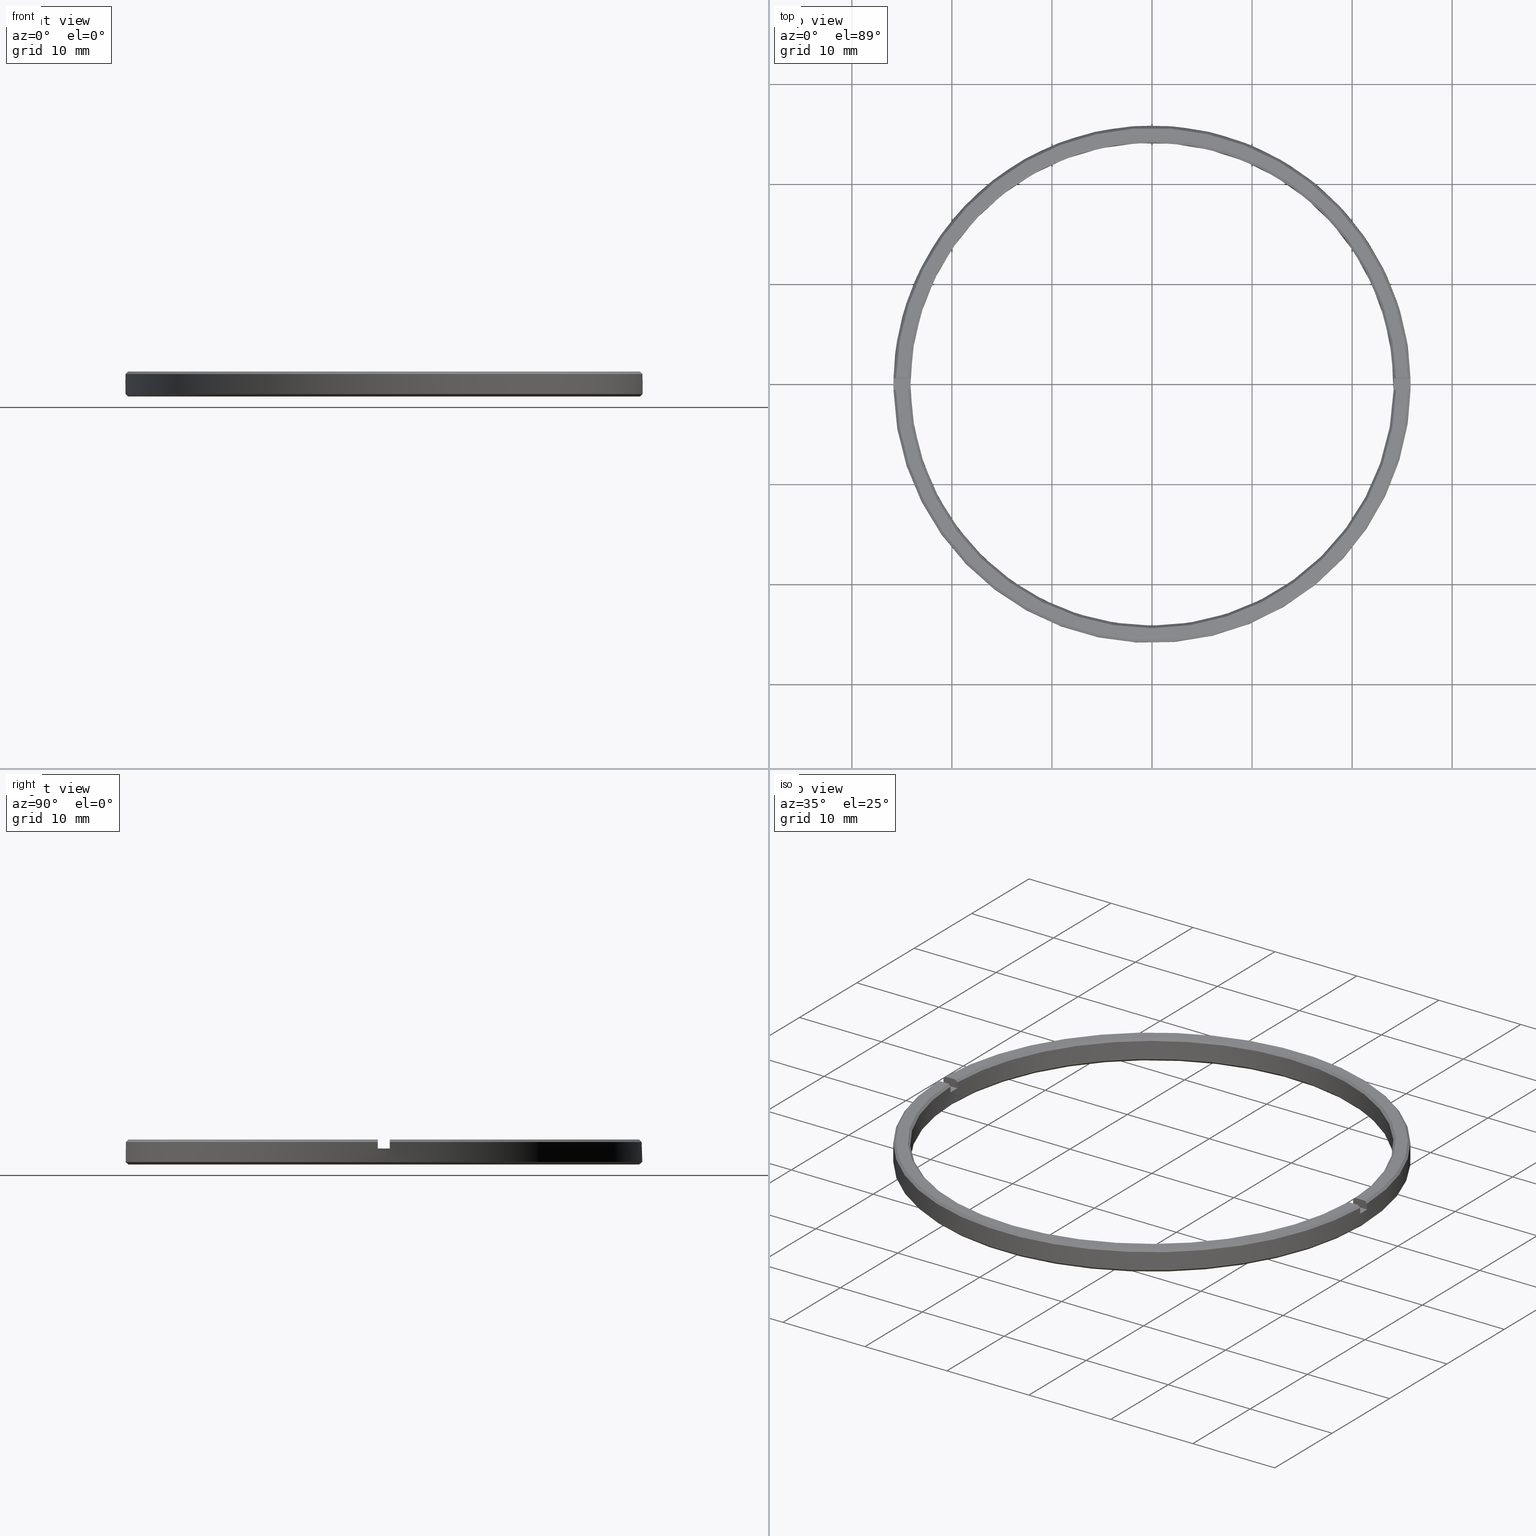
[diagram: canonical four-view strip — front | top / right | iso, engineering-drawing reading convention]
A machine part, canonical four-view strip (front | top / right | iso — engineering-drawing reading convention). The complete STEP part file that produces these views, byte-faithful:
ISO-10303-21;
HEADER;
FILE_DESCRIPTION (( 'STEP AP203' ),
    '1' );
FILE_NAME ('530083.STEP',
    '2024-05-08T01:04:20',
    ( 'Windows User' ),
    ( 'P R C' ),
    'SwSTEP 2.0',
    'SolidWorks 2020',
    '' );
FILE_SCHEMA (( 'CONFIG_CONTROL_DESIGN' ));
ENDSEC;

DATA;
#1 = ORIENTED_EDGE ( 'NONE', *, *, #526, .F. ) ;
#2 = AXIS2_PLACEMENT_3D ( 'NONE', #207, #560, #423 ) ;
#3 = EDGE_CURVE ( 'NONE', #324, #279, #374, .T. ) ;
#4 = ORIENTED_EDGE ( 'NONE', *, *, #190, .T. ) ;
#5 = FACE_BOUND ( 'NONE', #497, .T. ) ;
#6 = CIRCLE ( 'NONE', #103, 25.84450000000000003 ) ;
#7 = LINE ( 'NONE', #375, #263 ) ;
#8 = PLANE ( 'NONE',  #144 ) ;
#9 = VERTEX_POINT ( 'NONE', #59 ) ;
#10 = EDGE_CURVE ( 'NONE', #571, #54, #344, .T. ) ;
#11 = CARTESIAN_POINT ( 'NONE',  ( 0.000000000000000000, 2.775557561562891351E-14, -2.500000000000002220 ) ) ;
#12 = FACE_OUTER_BOUND ( 'NONE', #340, .T. ) ;
#13 = CARTESIAN_POINT ( 'NONE',  ( 0.000000000000000000, 7.536886096116588282E-31, -9.920449878242365571E-15 ) ) ;
#14 = DIRECTION ( 'NONE',  ( 0.000000000000000000, 0.000000000000000000, 1.000000000000000000 ) ) ;
#15 = FACE_OUTER_BOUND ( 'NONE', #464, .T. ) ;
#16 = EDGE_CURVE ( 'NONE', #384, #314, #102, .T. ) ;
#17 = AXIS2_PLACEMENT_3D ( 'NONE', #101, #469, #504 ) ;
#18 = ORIENTED_EDGE ( 'NONE', *, *, #292, .F. ) ;
#19 = CARTESIAN_POINT ( 'NONE',  ( 25.84450000000000003, 2.614882649339262468E-45, -2.250000000000002665 ) ) ;
#20 = CARTESIAN_POINT ( 'NONE',  ( -25.58746627257167106, 0.5999999999998090194, 1.503456963371626880E-13 ) ) ;
#21 = ORIENTED_EDGE ( 'NONE', *, *, #138, .F. ) ;
#22 = LINE ( 'NONE', #117, #573 ) ;
#23 = CARTESIAN_POINT ( 'NONE',  ( 24.39262183530548711, -0.6000000000000171863, 4.550754615721229933E-12 ) ) ;
#24 = ADVANCED_FACE ( 'NONE', ( #333 ), #223, .F. ) ;
#25 = CIRCLE ( 'NONE', #57, 25.59450000000001779 ) ;
#26 = CARTESIAN_POINT ( 'NONE',  ( 6.933347799793970248E-32, 2.775557561562890720E-14, -0.2500000000000279776 ) ) ;
#27 = DIRECTION ( 'NONE',  ( 3.081487911019577365E-32, -3.014754438446559643E-30, 1.000000000000000000 ) ) ;
#28 = ADVANCED_FACE ( 'NONE', ( #5, #12 ), #8, .F. ) ;
#29 = ORIENTED_EDGE ( 'NONE', *, *, #430, .T. ) ;
#30 = CIRCLE ( 'NONE', #291, 24.14999999999999858 ) ;
#31 = CARTESIAN_POINT ( 'NONE',  ( -24.14254543332106095, 0.5999999999996008526, -0.9000000000000119016 ) ) ;
#32 = FACE_OUTER_BOUND ( 'NONE', #372, .T. ) ;
#33 = CALENDAR_DATE ( 2024, 8, 5 ) ;
#34 = CARTESIAN_POINT ( 'NONE',  ( -24.30926316512925212, -0.6000000000000449418, -0.08333346386030346387 ) ) ;
#35 = DIRECTION ( 'NONE',  ( 0.000000000000000000, -1.000000000000000000, -3.030971715756955358E-30 ) ) ;
#36 = EDGE_CURVE ( 'NONE', #115, #115, #250, .T. ) ;
#37 = PRODUCT_DEFINITION_FORMATION_WITH_SPECIFIED_SOURCE ( '�κ�', '', #199, .NOT_KNOWN. ) ;
#38 = COORDINATED_UNIVERSAL_TIME_OFFSET ( 8, 0, .AHEAD. ) ;
#39 = ORIENTED_EDGE ( 'NONE', *, *, #569, .T. ) ;
#40 = DIRECTION ( 'NONE',  ( 1.857681716448781253E-61, 1.000000000000000000, 3.014754438446559643E-30 ) ) ;
#41 = LINE ( 'NONE', #528, #86 ) ;
#42 = APPROVAL_DATE_TIME ( #453, #71 ) ;
#43 = ORIENTED_EDGE ( 'NONE', *, *, #257, .F. ) ;
#44 = DIRECTION ( 'NONE',  ( -1.000000000000000000, 1.138016346203796793E-61, -3.774822690998982272E-32 ) ) ;
#45 = APPROVAL_STATUS ( 'not_yet_approved' ) ;
#46 = EDGE_LOOP ( 'NONE', ( #415 ) ) ;
#47 = AXIS2_PLACEMENT_3D ( 'NONE', #198, #330, #151 ) ;
#48 = ADVANCED_FACE ( 'NONE', ( #98, #195 ), #531, .T. ) ;
#49 = PERSON ( 'δָ��', 'δָ��', 'δָ��', ('δָ��'), ('δָ��'), ('δָ��') ) ;
#50 = ORIENTED_EDGE ( 'NONE', *, *, #209, .T. ) ;
#51 = VECTOR ( 'NONE', #79, 1000.000000000000000 ) ;
#52 = CARTESIAN_POINT ( 'NONE',  ( 24.14254543332135228, -0.6000000000000449418, -0.2500000000002927103 ) ) ;
#53 = ORIENTED_EDGE ( 'NONE', *, *, #346, .F. ) ;
#54 = VERTEX_POINT ( 'NONE', #564 ) ;
#55 = EDGE_CURVE ( 'NONE', #113, #113, #404, .T. ) ;
#56 = ORIENTED_EDGE ( 'NONE', *, *, #578, .F. ) ;
#57 = AXIS2_PLACEMENT_3D ( 'NONE', #364, #546, #137 ) ;
#58 = DIRECTION ( 'NONE',  ( 1.000000000000000000, -1.857681716448781253E-61, -5.600454199884986564E-91 ) ) ;
#59 = CARTESIAN_POINT ( 'NONE',  ( -25.58746627257294648, -0.6000000000000171863, -1.127083620833307837E-12 ) ) ;
#60 = CARTESIAN_POINT ( 'NONE',  ( -25.83753432992352828, 0.5999999999996008526, -0.2499999999997780109 ) ) ;
#61 = DIRECTION ( 'NONE',  ( -3.774822690998982272E-32, -3.014754438446559643E-30, 1.000000000000000000 ) ) ;
#62 = DIRECTION ( 'NONE',  ( 0.000000000000000000, -1.000000000000000000, 0.000000000000000000 ) ) ;
#63 = ORIENTED_EDGE ( 'NONE', *, *, #252, .F. ) ;
#64 = CARTESIAN_POINT ( 'NONE',  ( -25.83753432992374854, -0.6000000000000449418, -0.9000000000000119016 ) ) ;
#65 = APPROVAL_PERSON_ORGANIZATION ( #485, #458, #130 ) ;
#66 = ADVANCED_FACE ( 'NONE', ( #140 ), #555, .F. ) ;
#67 = DIRECTION ( 'NONE',  ( 0.000000000000000000, -1.000000000000000000, -3.030971715756962365E-30 ) ) ;
#68 = AXIS2_PLACEMENT_3D ( 'NONE', #429, #14, #380 ) ;
#69 = ORIENTED_EDGE ( 'NONE', *, *, #346, .T. ) ;
#70 =( LENGTH_UNIT ( ) NAMED_UNIT ( * ) SI_UNIT ( .MILLI., .METRE. ) );
#71 = APPROVAL ( #448, 'δָ��' ) ;
#72 = DIRECTION ( 'NONE',  ( 0.000000000000000000, -1.000000000000000000, 0.000000000000000000 ) ) ;
#73 = CONICAL_SURFACE ( 'NONE', #413, 24.39999999999999858, 0.7853981633974569387 ) ;
#74 = LINE ( 'NONE', #482, #51 ) ;
#75 = DIRECTION ( 'NONE',  ( 1.857681716448781253E-61, 1.000000000000000000, 3.014754438446559643E-30 ) ) ;
#76 = CARTESIAN_POINT ( 'NONE',  ( 0.000000000000000000, 2.775557561562891351E-14, -2.500000000000002220 ) ) ;
#77 = ORIENTED_EDGE ( 'NONE', *, *, #55, .F. ) ;
#78 = AXIS2_PLACEMENT_3D ( 'NONE', #408, #588, #577 ) ;
#79 = DIRECTION ( 'NONE',  ( -1.000000000000000000, 1.857681716448781253E-61, 5.600454199884986564E-91 ) ) ;
#80 = FACE_OUTER_BOUND ( 'NONE', #362, .T. ) ;
#81 = PERSON_AND_ORGANIZATION ( #49, #495 ) ;
#82 = EDGE_LOOP ( 'NONE', ( #77 ) ) ;
#83 = FACE_OUTER_BOUND ( 'NONE', #139, .T. ) ;
#84 = CARTESIAN_POINT ( 'NONE',  ( 0.000000000000000000, -0.5999999999999894307, -1.808852663067903976E-30 ) ) ;
#85 = CC_DESIGN_PERSON_AND_ORGANIZATION_ASSIGNMENT ( #586, #410, ( #449 ) ) ;
#86 = VECTOR ( 'NONE', #412, 1000.000000000000000 ) ;
#87 = COORDINATED_UNIVERSAL_TIME_OFFSET ( 8, 0, .AHEAD. ) ;
#88 = ORIENTED_EDGE ( 'NONE', *, *, #397, .F. ) ;
#89 = DIRECTION ( 'NONE',  ( -1.000000000000000000, 0.000000000000000000, 0.000000000000000000 ) ) ;
#90 = PERSON_AND_ORGANIZATION_ROLE ( 'design_owner' ) ;
#91 = ORIENTED_EDGE ( 'NONE', *, *, #487, .F. ) ;
#92 = ADVANCED_FACE ( 'NONE', ( #335, #551 ), #243, .F. ) ;
#93 = ORIENTED_EDGE ( 'NONE', *, *, #252, .T. ) ;
#94 = AXIS2_PLACEMENT_3D ( 'NONE', #149, #509, #95 ) ;
#95 = DIRECTION ( 'NONE',  ( 1.000000000000000000, 1.011775290425143626E-46, -3.356078616295163691E-17 ) ) ;
#96 = ORIENTED_EDGE ( 'NONE', *, *, #36, .T. ) ;
#97 = EDGE_CURVE ( 'NONE', #552, #454, #100, .T. ) ;
#98 = FACE_BOUND ( 'NONE', #587, .T. ) ;
#99 = ORIENTED_EDGE ( 'NONE', *, *, #470, .T. ) ;
#100 = LINE ( 'NONE', #104, #554 ) ;
#101 = CARTESIAN_POINT ( 'NONE',  ( -50000.00000000002183, -0.6000000000000449418, -0.9000000000000396572 ) ) ;
#102 = B_SPLINE_CURVE_WITH_KNOTS ( 'NONE', 3,
 ( #192, #561, #424, #418 ),
 .UNSPECIFIED., .F., .F.,
 ( 4, 4 ),
 ( 3.913748340808804514E-17, 0.0003536015176836902318 ),
 .UNSPECIFIED. ) ;
#103 = AXIS2_PLACEMENT_3D ( 'NONE', #222, #533, #498 ) ;
#104 = CARTESIAN_POINT ( 'NONE',  ( 24.14254543332106095, 0.5999999999996008526, -0.9000000000000119016 ) ) ;
#105 = DIRECTION ( 'NONE',  ( 3.157262203913503193E-32, -2.999399093717827902E-30, 1.000000000000000000 ) ) ;
#106 = VECTOR ( 'NONE', #395, 1000.000000000000000 ) ;
#107 = CARTESIAN_POINT ( 'NONE',  ( 24.14254543332135228, -0.6000000000000449418, -0.9000000000000119016 ) ) ;
#108 = VERTEX_POINT ( 'NONE', #251 ) ;
#109 = DIRECTION ( 'NONE',  ( -3.774822690998982272E-32, -3.014754438446559643E-30, 1.000000000000000000 ) ) ;
#110 = ADVANCED_FACE ( 'NONE', ( #471 ), #510, .T. ) ;
#111 = CARTESIAN_POINT ( 'NONE',  ( 24.30926316512926988, 0.5999999999996008526, -0.08333346386029805153 ) ) ;
#112 = EDGE_LOOP ( 'NONE', ( #18, #63, #236, #281, #208, #1 ) ) ;
#113 = VERTEX_POINT ( 'NONE', #19 ) ;
#114 = CC_DESIGN_APPROVAL ( #458, ( #37 ) ) ;
#115 = VERTEX_POINT ( 'NONE', #481 ) ;
#116 = EDGE_CURVE ( 'NONE', #253, #196, #174, .T. ) ;
#117 = CARTESIAN_POINT ( 'NONE',  ( -25.83753432992352828, 0.5999999999996008526, -0.9000000000000119016 ) ) ;
#118 = CARTESIAN_POINT ( 'NONE',  ( 4.930380657631294225E-32, 2.775557561562890720E-14, -0.9000000000000119016 ) ) ;
#119 = DIRECTION ( 'NONE',  ( -3.081487911019577365E-32, 3.014754438446559643E-30, -1.000000000000000000 ) ) ;
#120 = CARTESIAN_POINT ( 'NONE',  ( -50000.00000000002910, 0.5999999999996008526, -0.9000000000000119016 ) ) ;
#121 = AXIS2_PLACEMENT_3D ( 'NONE', #558, #105, #282 ) ;
#122 = EDGE_CURVE ( 'NONE', #321, #108, #522, .T. ) ;
#123 = PERSON_AND_ORGANIZATION ( #49, #495 ) ;
#124 = APPLICATION_CONTEXT ( 'configuration controlled 3d designs of mechanical parts and assemblies' ) ;
#125 = DIRECTION ( 'NONE',  ( 0.000000000000000000, -1.000000000000000000, 0.000000000000000000 ) ) ;
#126 = CARTESIAN_POINT ( 'NONE',  ( 24.14254543332124214, 0.5999999999996008526, -0.2500000000001449396 ) ) ;
#127 = AXIS2_PLACEMENT_3D ( 'NONE', #441, #27, #575 ) ;
#128 = DIRECTION ( 'NONE',  ( 0.000000000000000000, -1.000000000000000000, 0.000000000000000000 ) ) ;
#129 = DIRECTION ( 'NONE',  ( -1.000000000000000000, 1.138016346203796793E-61, -3.774822690998982272E-32 ) ) ;
#130 = APPROVAL_ROLE ( '' ) ;
#131 = ORIENTED_EDGE ( 'NONE', *, *, #501, .T. ) ;
#132 = ORIENTED_EDGE ( 'NONE', *, *, #3, .F. ) ;
#133 = FACE_OUTER_BOUND ( 'NONE', #370, .T. ) ;
#134 = AXIS2_PLACEMENT_3D ( 'NONE', #523, #520, #476 ) ;
#135 = CALENDAR_DATE ( 2024, 8, 5 ) ;
#136 = ORIENTED_EDGE ( 'NONE', *, *, #366, .F. ) ;
#137 = DIRECTION ( 'NONE',  ( -1.000000000000000000, 0.000000000000000000, 0.000000000000000000 ) ) ;
#138 = EDGE_CURVE ( 'NONE', #237, #321, #247, .T. ) ;
#139 = EDGE_LOOP ( 'NONE', ( #240, #529, #231, #248 ) ) ;
#140 = FACE_OUTER_BOUND ( 'NONE', #420, .T. ) ;
#141 = CC_DESIGN_APPROVAL ( #235, ( #449 ) ) ;
#142 = EDGE_CURVE ( 'NONE', #196, #321, #562, .T. ) ;
#143 = ORIENTED_EDGE ( 'NONE', *, *, #354, .T. ) ;
#144 = AXIS2_PLACEMENT_3D ( 'NONE', #472, #61, #369 ) ;
#145 = DESIGN_CONTEXT ( 'detailed design', #176, 'design' ) ;
#146 = ORIENTED_EDGE ( 'NONE', *, *, #514, .T. ) ;
#147 = EDGE_LOOP ( 'NONE', ( #325, #21, #368, #425, #407, #376 ) ) ;
#148 = DIRECTION ( 'NONE',  ( -1.000000000000000000, 0.000000000000000000, 0.000000000000000000 ) ) ;
#149 = CARTESIAN_POINT ( 'NONE',  ( 0.000000000000000000, 0.000000000000000000, -2.250000000000001776 ) ) ;
#150 = DIRECTION ( 'NONE',  ( 1.000000000000000000, -1.138016346203796793E-61, 3.774822690998982272E-32 ) ) ;
#151 = DIRECTION ( 'NONE',  ( 0.000000000000000000, -1.000000000000000000, 0.000000000000000000 ) ) ;
#152 = ADVANCED_FACE ( 'NONE', ( #15, #245 ), #73, .F. ) ;
#153 = CIRCLE ( 'NONE', #232, 25.84450000000000003 ) ;
#154 = CARTESIAN_POINT ( 'NONE',  ( 4.930380657631294225E-32, 2.775557561562890720E-14, -0.9000000000000119016 ) ) ;
#155 = DIRECTION ( 'NONE',  ( 0.000000000000000000, 0.000000000000000000, 1.000000000000000000 ) ) ;
#156 = ORIENTED_EDGE ( 'NONE', *, *, #157, .T. ) ;
#157 = EDGE_CURVE ( 'NONE', #205, #417, #435, .T. ) ;
#158 = DIRECTION ( 'NONE',  ( -3.081487911019577365E-32, 3.014754438446559643E-30, -1.000000000000000000 ) ) ;
#159 = B_SPLINE_CURVE_WITH_KNOTS ( 'NONE', 3,
 ( #409, #452, #589, #230 ),
 .UNSPECIFIED., .F., .F.,
 ( 4, 4 ),
 ( 5.603463398937076117E-15, 0.0003536074190670393481 ),
 .UNSPECIFIED. ) ;
#160 = VECTOR ( 'NONE', #213, 1000.000000000000000 ) ;
#161 = CARTESIAN_POINT ( 'NONE',  ( 25.67082240249838776, 0.5999999999996008526, -0.08333322249342473009 ) ) ;
#162 = ORIENTED_EDGE ( 'NONE', *, *, #164, .F. ) ;
#163 = FACE_OUTER_BOUND ( 'NONE', #450, .T. ) ;
#164 = EDGE_CURVE ( 'NONE', #417, #463, #153, .T. ) ;
#165 = LOCAL_TIME ( 9, 4, 20.00000000000000000, #544 ) ;
#166 = FACE_OUTER_BOUND ( 'NONE', #112, .T. ) ;
#167 = VERTEX_POINT ( 'NONE', #256 ) ;
#168 = CARTESIAN_POINT ( 'NONE',  ( -25.83753432992352828, -0.6000000000000449418, -0.9000000000000396572 ) ) ;
#169 = COORDINATED_UNIVERSAL_TIME_OFFSET ( 8, 0, .AHEAD. ) ;
#170 = PLANE ( 'NONE',  #549 ) ;
#171 = CARTESIAN_POINT ( 'NONE',  ( 0.000000000000000000, 0.000000000000000000, -0.9000000000000119016 ) ) ;
#172 = CALENDAR_DATE ( 2024, 8, 5 ) ;
#173 = CARTESIAN_POINT ( 'NONE',  ( -50000.00000000002910, 0.5999999999996008526, -0.9000000000000119016 ) ) ;
#174 = B_SPLINE_CURVE_WITH_KNOTS ( 'NONE', 3,
 ( #60, #426, #194, #20 ),
 .UNSPECIFIED., .F., .F.,
 ( 4, 4 ),
 ( 3.145556022154527739E-16, 0.0003536015176832808370 ),
 .UNSPECIFIED. ) ;
#175 = PLANE ( 'NONE',  #416 ) ;
#176 = APPLICATION_CONTEXT ( 'configuration controlled 3d designs of mechanical parts and assemblies' ) ;
#177 = CALENDAR_DATE ( 2024, 8, 5 ) ;
#178 = ORIENTED_EDGE ( 'NONE', *, *, #142, .F. ) ;
#179 = PLANE ( 'NONE',  #387 ) ;
#180 = LINE ( 'NONE', #120, #212 ) ;
#181 = CALENDAR_DATE ( 2024, 8, 5 ) ;
#182 = ORIENTED_EDGE ( 'NONE', *, *, #227, .T. ) ;
#183 = CARTESIAN_POINT ( 'NONE',  ( -24.39262183530128070, -0.6000000000000171863, 3.440289484623940248E-13 ) ) ;
#184 = VECTOR ( 'NONE', #129, 1000.000000000000000 ) ;
#185 = ORIENTED_EDGE ( 'NONE', *, *, #578, .T. ) ;
#186 = ADVANCED_FACE ( 'NONE', ( #204 ), #488, .T. ) ;
#187 = B_SPLINE_CURVE_WITH_KNOTS ( 'NONE', 3,
 ( #572, #390, #386, #210 ),
 .UNSPECIFIED., .F., .F.,
 ( 4, 4 ),
 ( 1.579884756420022282E-15, 0.0003536015176797295870 ),
 .UNSPECIFIED. ) ;
#188 = CIRCLE ( 'NONE', #308, 24.14999999999999503 ) ;
#189 = ORIENTED_EDGE ( 'NONE', *, *, #16, .F. ) ;
#190 = EDGE_CURVE ( 'NONE', #454, #237, #432, .T. ) ;
#191 = ORIENTED_EDGE ( 'NONE', *, *, #257, .T. ) ;
#192 = CARTESIAN_POINT ( 'NONE',  ( 25.83753432992367394, -0.6000000000000449418, -0.2499999999999130418 ) ) ;
#193 = LOCAL_TIME ( 9, 4, 20.00000000000000000, #169 ) ;
#194 = CARTESIAN_POINT ( 'NONE',  ( -25.67082240249835223, 0.5999999999996008526, -0.08333322249338864784 ) ) ;
#195 = FACE_OUTER_BOUND ( 'NONE', #313, .T. ) ;
#196 = VERTEX_POINT ( 'NONE', #297 ) ;
#197 = CARTESIAN_POINT ( 'NONE',  ( 24.22590436582019890, 0.5999999999996008526, -0.1666667985457844503 ) ) ;
#198 = CARTESIAN_POINT ( 'NONE',  ( 4.930380657631294225E-32, 2.775557561562890720E-14, -0.9000000000000119016 ) ) ;
#199 = PRODUCT ( '530083', '530083', '', ( #299 ) ) ;
#200 = CC_DESIGN_PERSON_AND_ORGANIZATION_ASSIGNMENT ( #317, #90, ( #199 ) ) ;
#201 = DIRECTION ( 'NONE',  ( -1.000000000000000000, 0.000000000000000000, 0.000000000000000000 ) ) ;
#202 = CARTESIAN_POINT ( 'NONE',  ( 24.22590436582300200, -0.6000000000000449418, -0.1666667985429750309 ) ) ;
#203 = CARTESIAN_POINT ( 'NONE',  ( 24.14254543332135938, 0.5999999999996008526, -0.9000000000000119016 ) ) ;
#204 = FACE_OUTER_BOUND ( 'NONE', #460, .T. ) ;
#205 = VERTEX_POINT ( 'NONE', #107 ) ;
#206 = AXIS2_PLACEMENT_3D ( 'NONE', #118, #525, #128 ) ;
#207 = CARTESIAN_POINT ( 'NONE',  ( 0.000000000000000000, -7.536886096115486511E-31, -3.512815038852896158E-14 ) ) ;
#208 = ORIENTED_EDGE ( 'NONE', *, *, #116, .F. ) ;
#209 = EDGE_CURVE ( 'NONE', #571, #513, #517, .T. ) ;
#210 = CARTESIAN_POINT ( 'NONE',  ( -25.83753432992374854, -0.6000000000000449418, -0.2499999999997694067 ) ) ;
#211 =( NAMED_UNIT ( * ) PLANE_ANGLE_UNIT ( ) SI_UNIT ( $, .RADIAN. ) );
#212 = VECTOR ( 'NONE', #218, 1000.000000000000000 ) ;
#213 = DIRECTION ( 'NONE',  ( -0.000000000000000000, 3.014754438446559643E-30, -1.000000000000000000 ) ) ;
#214 = CARTESIAN_POINT ( 'NONE',  ( -24.14254543332135228, -0.6000000000000449418, -0.9000000000000119016 ) ) ;
#215 = EDGE_CURVE ( 'NONE', #264, #237, #216, .T. ) ;
#216 = CIRCLE ( 'NONE', #2, 24.39999999999996660 ) ;
#217 = DIRECTION ( 'NONE',  ( -1.000000000000000000, 0.000000000000000000, 3.591559991670408781E-17 ) ) ;
#218 = DIRECTION ( 'NONE',  ( -1.000000000000000000, 1.857681716448781253E-61, 5.600454199884986564E-91 ) ) ;
#219 = DATE_AND_TIME ( #33, #221 ) ;
#220 = CARTESIAN_POINT ( 'NONE',  ( -24.39262183530128070, -0.6000000000000171863, 3.440289484623940248E-13 ) ) ;
#221 = LOCAL_TIME ( 9, 4, 20.00000000000000000, #87 ) ;
#222 = CARTESIAN_POINT ( 'NONE',  ( 6.933347799794055640E-32, 2.775557561562890720E-14, -0.2500000000000002220 ) ) ;
#223 = CONICAL_SURFACE ( 'NONE', #121, 24.39999999999999147, 0.7853981633974526089 ) ;
#224 = ORIENTED_EDGE ( 'NONE', *, *, #541, .T. ) ;
#225 = PLANE ( 'NONE',  #78 ) ;
#226 = LINE ( 'NONE', #584, #184 ) ;
#227 = EDGE_CURVE ( 'NONE', #196, #264, #7, .T. ) ;
#228 = COORDINATED_UNIVERSAL_TIME_OFFSET ( 8, 0, .AHEAD. ) ;
#229 = ORIENTED_EDGE ( 'NONE', *, *, #164, .T. ) ;
#230 = CARTESIAN_POINT ( 'NONE',  ( -24.14254543332135938, 0.5999999999996008526, -0.2500000000003254064 ) ) ;
#231 = ORIENTED_EDGE ( 'NONE', *, *, #400, .T. ) ;
#232 = AXIS2_PLACEMENT_3D ( 'NONE', #154, #379, #557 ) ;
#233 = CIRCLE ( 'NONE', #258, 24.14999999999999858 ) ;
#234 = EDGE_LOOP ( 'NONE', ( #336, #540, #260, #565 ) ) ;
#235 = APPROVAL ( #277, 'δָ��' ) ;
#236 = ORIENTED_EDGE ( 'NONE', *, *, #480, .F. ) ;
#237 = VERTEX_POINT ( 'NONE', #332 ) ;
#238 = EDGE_LOOP ( 'NONE', ( #389, #274, #185, #466 ) ) ;
#239 = CIRCLE ( 'NONE', #341, 24.39999999999999858 ) ;
#240 = ORIENTED_EDGE ( 'NONE', *, *, #292, .T. ) ;
#241 =( GEOMETRIC_REPRESENTATION_CONTEXT ( 3 ) GLOBAL_UNCERTAINTY_ASSIGNED_CONTEXT ( ( #322 ) ) GLOBAL_UNIT_ASSIGNED_CONTEXT ( ( #70, #211, #392 ) ) REPRESENTATION_CONTEXT ( 'NONE', 'WORKASPACE' ) );
#242 = DIRECTION ( 'NONE',  ( 0.000000000000000000, 0.000000000000000000, -1.000000000000000000 ) ) ;
#243 = CYLINDRICAL_SURFACE ( 'NONE', #352, 24.14999999999999858 ) ;
#244 = EDGE_CURVE ( 'NONE', #556, #591, #486, .T. ) ;
#245 = FACE_BOUND ( 'NONE', #46, .T. ) ;
#246 = CARTESIAN_POINT ( 'NONE',  ( 0.000000000000000000, 1.023290938330524582E-44, -2.500000000000002220 ) ) ;
#247 = LINE ( 'NONE', #431, #302 ) ;
#248 = ORIENTED_EDGE ( 'NONE', *, *, #3, .T. ) ;
#249 = VERTEX_POINT ( 'NONE', #300 ) ;
#250 = CIRCLE ( 'NONE', #459, 25.59450000000000003 ) ;
#251 = CARTESIAN_POINT ( 'NONE',  ( 25.83753432992370591, 0.5999999999996008526, -0.2499999999997050970 ) ) ;
#252 = EDGE_CURVE ( 'NONE', #298, #279, #301, .T. ) ;
#253 = VERTEX_POINT ( 'NONE', #269 ) ;
#254 = DIRECTION ( 'NONE',  ( -3.081487911019577365E-32, 3.014754438446559643E-30, -1.000000000000000000 ) ) ;
#255 = AXIS2_PLACEMENT_3D ( 'NONE', #13, #338, #287 ) ;
#256 = CARTESIAN_POINT ( 'NONE',  ( -24.39999999999999858, 2.775557561562891351E-14, -2.500000000000002220 ) ) ;
#257 = EDGE_CURVE ( 'NONE', #417, #384, #393, .T. ) ;
#258 = AXIS2_PLACEMENT_3D ( 'NONE', #447, #312, #455 ) ;
#259 = FACE_OUTER_BOUND ( 'NONE', #82, .T. ) ;
#260 = ORIENTED_EDGE ( 'NONE', *, *, #122, .T. ) ;
#261 = FACE_OUTER_BOUND ( 'NONE', #505, .T. ) ;
#262 = CARTESIAN_POINT ( 'NONE',  ( -50000.00000000002183, -0.6000000000000449418, -0.9000000000000396572 ) ) ;
#263 = VECTOR ( 'NONE', #150, 1000.000000000000000 ) ;
#264 = VERTEX_POINT ( 'NONE', #583 ) ;
#265 = DATE_TIME_ROLE ( 'creation_date' ) ;
#266 = CARTESIAN_POINT ( 'NONE',  ( -24.14254543332135938, 0.5999999999996008526, -0.2500000000003254064 ) ) ;
#267 = DIRECTION ( 'NONE',  ( 0.000000000000000000, -2.904681227600415756E-30, 1.000000000000000000 ) ) ;
#268 = ORIENTED_EDGE ( 'NONE', *, *, #328, .F. ) ;
#269 = CARTESIAN_POINT ( 'NONE',  ( -25.83753432992352828, 0.5999999999996008526, -0.2499999999997780109 ) ) ;
#270 = VECTOR ( 'NONE', #537, 1000.000000000000000 ) ;
#271 = APPROVAL_PERSON_ORGANIZATION ( #445, #235, #456 ) ;
#272 = DIRECTION ( 'NONE',  ( 0.000000000000000000, -1.000000000000000000, -3.014754438446559643E-30 ) ) ;
#273 = DATE_AND_TIME ( #172, #371 ) ;
#274 = ORIENTED_EDGE ( 'NONE', *, *, #10, .T. ) ;
#275 = LINE ( 'NONE', #542, #270 ) ;
#276 = PRODUCT_RELATED_PRODUCT_CATEGORY ( 'detail', '', ( #199 ) ) ;
#277 = APPROVAL_STATUS ( 'not_yet_approved' ) ;
#278 = CC_DESIGN_DATE_AND_TIME_ASSIGNMENT ( #350, #361, ( #449 ) ) ;
#279 = VERTEX_POINT ( 'NONE', #310 ) ;
#280 = MANIFOLD_SOLID_BREP ( '�г�-����1', #582 ) ;
#281 = ORIENTED_EDGE ( 'NONE', *, *, #227, .F. ) ;
#282 = DIRECTION ( 'NONE',  ( 0.000000000000000000, -1.000000000000000000, -3.030971715756962365E-30 ) ) ;
#283 = ORIENTED_EDGE ( 'NONE', *, *, #480, .T. ) ;
#284 = CARTESIAN_POINT ( 'NONE',  ( 24.30926316513486540, -0.6000000000000449418, -0.08333346385469361794 ) ) ;
#285 = EDGE_CURVE ( 'NONE', #548, #591, #337, .T. ) ;
#286 = ORIENTED_EDGE ( 'NONE', *, *, #461, .F. ) ;
#287 = DIRECTION ( 'NONE',  ( -1.000000000000000000, 0.000000000000000000, 0.000000000000000000 ) ) ;
#288 = ORIENTED_EDGE ( 'NONE', *, *, #470, .F. ) ;
#289 = DIRECTION ( 'NONE',  ( -1.000000000000000000, 0.000000000000000000, 0.000000000000000000 ) ) ;
#290 = CARTESIAN_POINT ( 'NONE',  ( 25.83753432992367394, -0.6000000000000449418, -0.2499999999999130418 ) ) ;
#291 = AXIS2_PLACEMENT_3D ( 'NONE', #306, #351, #125 ) ;
#292 = EDGE_CURVE ( 'NONE', #279, #548, #74, .T. ) ;
#293 = ADVANCED_BREP_SHAPE_REPRESENTATION ( '530083', ( #280, #323 ), #241 ) ;
#294 = DIRECTION ( 'NONE',  ( 3.081487911019577365E-32, -3.014754438446559643E-30, 1.000000000000000000 ) ) ;
#295 = ORIENTED_EDGE ( 'NONE', *, *, #215, .F. ) ;
#296 = ADVANCED_FACE ( 'NONE', ( #259, #261 ), #442, .T. ) ;
#297 = CARTESIAN_POINT ( 'NONE',  ( -25.58746627257167106, 0.5999999999998090194, 1.503456963371626880E-13 ) ) ;
#298 = VERTEX_POINT ( 'NONE', #266 ) ;
#299 = MECHANICAL_CONTEXT ( 'NONE', #124, 'mechanical' ) ;
#300 = CARTESIAN_POINT ( 'NONE',  ( -24.14999999999999503, 2.775557561562891351E-14, -2.250000000000004441 ) ) ;
#301 = LINE ( 'NONE', #31, #160 ) ;
#302 = VECTOR ( 'NONE', #508, 1000.000000000000000 ) ;
#303 = CARTESIAN_POINT ( 'NONE',  ( -24.14254543332124214, -0.6000000000000449418, -0.2500000000001097455 ) ) ;
#304 = DIRECTION ( 'NONE',  ( 0.000000000000000000, 3.014754438446559643E-30, -1.000000000000000000 ) ) ;
#305 = CC_DESIGN_DATE_AND_TIME_ASSIGNMENT ( #219, #265, ( #394 ) ) ;
#306 = CARTESIAN_POINT ( 'NONE',  ( 4.930380657631294225E-32, 2.775557561562890720E-14, -0.9000000000000119016 ) ) ;
#307 = CARTESIAN_POINT ( 'NONE',  ( -50000.00000000002183, -0.6000000000000449418, -0.9000000000000119016 ) ) ;
#308 = AXIS2_PLACEMENT_3D ( 'NONE', #491, #119, #217 ) ;
#309 = APPLICATION_PROTOCOL_DEFINITION ( 'international standard', 'config_control_design', 1994, #176 ) ;
#310 = CARTESIAN_POINT ( 'NONE',  ( -24.14254543332135938, 0.5999999999996008526, -0.9000000000000257794 ) ) ;
#311 = ADVANCED_FACE ( 'NONE', ( #166 ), #170, .F. ) ;
#312 = DIRECTION ( 'NONE',  ( -3.081487911019577365E-32, 3.014754438446559643E-30, -1.000000000000000000 ) ) ;
#313 = EDGE_LOOP ( 'NONE', ( #427 ) ) ;
#314 = VERTEX_POINT ( 'NONE', #451 ) ;
#315 = AXIS2_PLACEMENT_3D ( 'NONE', #26, #254, #72 ) ;
#316 = DIRECTION ( 'NONE',  ( -3.774822690998982272E-32, -3.014754438446559643E-30, 1.000000000000000000 ) ) ;
#317 = PERSON_AND_ORGANIZATION ( #49, #495 ) ;
#318 = ORIENTED_EDGE ( 'NONE', *, *, #397, .T. ) ;
#319 = CARTESIAN_POINT ( 'NONE',  ( 25.83753432992374854, -0.6000000000000449418, -0.9000000000000119016 ) ) ;
#320 = ADVANCED_FACE ( 'NONE', ( #535 ), #179, .F. ) ;
#321 = VERTEX_POINT ( 'NONE', #345 ) ;
#322 = UNCERTAINTY_MEASURE_WITH_UNIT (LENGTH_MEASURE( 1.000000000000000082E-05 ), #70, 'distance_accuracy_value', 'NONE');
#323 = AXIS2_PLACEMENT_3D ( 'NONE', #574, #343, #524 ) ;
#324 = VERTEX_POINT ( 'NONE', #214 ) ;
#325 = ORIENTED_EDGE ( 'NONE', *, *, #122, .F. ) ;
#326 = ORIENTED_EDGE ( 'NONE', *, *, #215, .T. ) ;
#327 = EDGE_LOOP ( 'NONE', ( #156, #229, #131, #579 ) ) ;
#328 = EDGE_CURVE ( 'NONE', #552, #205, #30, .T. ) ;
#329 = CARTESIAN_POINT ( 'NONE',  ( 25.75417842054379847, 0.5999999999996008526, -0.1666665568994196156 ) ) ;
#330 = DIRECTION ( 'NONE',  ( -3.081487911019577365E-32, 3.014754438446559643E-30, -1.000000000000000000 ) ) ;
#331 = AXIS2_PLACEMENT_3D ( 'NONE', #566, #242, #289 ) ;
#332 = CARTESIAN_POINT ( 'NONE',  ( 24.39262183530128425, 0.5999999999998090194, 3.398310303013559788E-13 ) ) ;
#333 = FACE_OUTER_BOUND ( 'NONE', #238, .T. ) ;
#334 = DIRECTION ( 'NONE',  ( 0.000000000000000000, 0.000000000000000000, -1.000000000000000000 ) ) ;
#335 = FACE_OUTER_BOUND ( 'NONE', #519, .T. ) ;
#336 = ORIENTED_EDGE ( 'NONE', *, *, #116, .T. ) ;
#337 = CIRCLE ( 'NONE', #206, 25.84450000000000003 ) ;
#338 = DIRECTION ( 'NONE',  ( 0.000000000000000000, 0.000000000000000000, -1.000000000000000000 ) ) ;
#339 = PRODUCT_DEFINITION_SHAPE ( 'NONE', 'NONE',  #394 ) ;
#340 = EDGE_LOOP ( 'NONE', ( #595 ) ) ;
#341 = AXIS2_PLACEMENT_3D ( 'NONE', #76, #484, #89 ) ;
#342 = CARTESIAN_POINT ( 'NONE',  ( -25.83753432992375565, 0.5999999999996008526, -0.9000000000000257794 ) ) ;
#343 = DIRECTION ( 'NONE',  ( 0.000000000000000000, 0.000000000000000000, 1.000000000000000000 ) ) ;
#344 = B_SPLINE_CURVE_WITH_KNOTS ( 'NONE', 3,
 ( #378, #284, #202, #52 ),
 .UNSPECIFIED., .F., .F.,
 ( 4, 4 ),
 ( 6.451234442705939337E-15, 0.0003536074190911661533 ),
 .UNSPECIFIED. ) ;
#345 = CARTESIAN_POINT ( 'NONE',  ( 25.58746627257183093, 0.5999999999998090194, -4.960224939121181208E-15 ) ) ;
#346 = EDGE_CURVE ( 'NONE', #324, #502, #532, .T. ) ;
#347 = CARTESIAN_POINT ( 'NONE',  ( -24.14254543332106095, -0.6000000000000449418, -0.9000000000000396572 ) ) ;
#348 = B_SPLINE_CURVE_WITH_KNOTS ( 'NONE', 3,
 ( #303, #483, #34, #220 ),
 .UNSPECIFIED., .F., .F.,
 ( 4, 4 ),
 ( 5.393360955384571186E-17, 0.0003536074190786588512 ),
 .UNSPECIFIED. ) ;
#349 = DIRECTION ( 'NONE',  ( -1.857681716448781253E-61, -1.000000000000000000, -3.014754438446559643E-30 ) ) ;
#350 = DATE_AND_TIME ( #177, #193 ) ;
#351 = DIRECTION ( 'NONE',  ( -3.081487911019577365E-32, 3.014754438446559643E-30, -1.000000000000000000 ) ) ;
#352 = AXIS2_PLACEMENT_3D ( 'NONE', #512, #294, #62 ) ;
#353 = LINE ( 'NONE', #84, #543 ) ;
#354 = EDGE_CURVE ( 'NONE', #249, #249, #188, .T. ) ;
#355 = SHAPE_DEFINITION_REPRESENTATION ( #339, #293 ) ;
#356 = CARTESIAN_POINT ( 'NONE',  ( 25.83753432992352828, -0.6000000000000449418, -0.9000000000000396572 ) ) ;
#357 = CARTESIAN_POINT ( 'NONE',  ( 0.000000000000000000, -7.536886096117803908E-31, 4.466912950640278268E-14 ) ) ;
#358 = PERSON_AND_ORGANIZATION_ROLE ( 'creator' ) ;
#359 = ORIENTED_EDGE ( 'NONE', *, *, #526, .T. ) ;
#360 = PLANE ( 'NONE',  #439 ) ;
#361 = DATE_TIME_ROLE ( 'classification_date' ) ;
#362 = EDGE_LOOP ( 'NONE', ( #295, #283, #318, #4 ) ) ;
#363 = VECTOR ( 'NONE', #444, 1000.000000000000000 ) ;
#364 = CARTESIAN_POINT ( 'NONE',  ( 0.000000000000000000, 7.536886096116588282E-31, -9.920449878242365571E-15 ) ) ;
#365 = ORIENTED_EDGE ( 'NONE', *, *, #487, .T. ) ;
#366 = EDGE_CURVE ( 'NONE', #502, #513, #348, .T. ) ;
#367 = AXIS2_PLACEMENT_3D ( 'NONE', #563, #334, #148 ) ;
#368 = ORIENTED_EDGE ( 'NONE', *, *, #190, .F. ) ;
#369 = DIRECTION ( 'NONE',  ( 0.000000000000000000, -1.000000000000000000, -3.014754438446559643E-30 ) ) ;
#370 = EDGE_LOOP ( 'NONE', ( #496, #288, #136, #53, #506, #373 ) ) ;
#371 = LOCAL_TIME ( 9, 4, 20.00000000000000000, #228 ) ;
#372 = EDGE_LOOP ( 'NONE', ( #182, #326, #414, #178 ) ) ;
#373 = ORIENTED_EDGE ( 'NONE', *, *, #244, .F. ) ;
#374 = CIRCLE ( 'NONE', #47, 24.14999999999999858 ) ;
#375 = CARTESIAN_POINT ( 'NONE',  ( 0.000000000000000000, 0.6000000000000171863, 1.808852663067987704E-30 ) ) ;
#376 = ORIENTED_EDGE ( 'NONE', *, *, #430, .F. ) ;
#377 = CARTESIAN_POINT ( 'NONE',  ( 24.14254543332124214, 0.5999999999996008526, -0.2500000000001449396 ) ) ;
#378 = CARTESIAN_POINT ( 'NONE',  ( 24.39262183530548711, -0.6000000000000171863, 4.550754615721229933E-12 ) ) ;
#379 = DIRECTION ( 'NONE',  ( 3.081487911019577365E-32, -3.014754438446559643E-30, 1.000000000000000000 ) ) ;
#380 = DIRECTION ( 'NONE',  ( 1.000000000000000000, 0.000000000000000000, 0.000000000000000000 ) ) ;
#381 = ADVANCED_FACE ( 'NONE', ( #83 ), #225, .T. ) ;
#382 = DIRECTION ( 'NONE',  ( 0.000000000000000000, -1.000000000000000000, 0.000000000000000000 ) ) ;
#383 = CARTESIAN_POINT ( 'NONE',  ( 2.432266328319622584E-62, -7.536886096116156507E-31, -9.974659986866639215E-15 ) ) ;
#384 = VERTEX_POINT ( 'NONE', #290 ) ;
#385 = ADVANCED_FACE ( 'NONE', ( #133 ), #175, .F. ) ;
#386 = CARTESIAN_POINT ( 'NONE',  ( -25.75417842054457651, -0.6000000000000449418, -0.1666665569002101221 ) ) ;
#387 = AXIS2_PLACEMENT_3D ( 'NONE', #398, #40, #527 ) ;
#388 = DIRECTION ( 'NONE',  ( 0.000000000000000000, -3.014754438446559643E-30, 1.000000000000000000 ) ) ;
#389 = ORIENTED_EDGE ( 'NONE', *, *, #209, .F. ) ;
#390 = CARTESIAN_POINT ( 'NONE',  ( -25.67082240250002911, -0.6000000000000449418, -0.08333322249507170432 ) ) ;
#391 = AXIS2_PLACEMENT_3D ( 'NONE', #570, #158, #382 ) ;
#392 =( NAMED_UNIT ( * ) SI_UNIT ( $, .STERADIAN. ) SOLID_ANGLE_UNIT ( ) );
#393 = LINE ( 'NONE', #356, #462 ) ;
#394 = PRODUCT_DEFINITION ( 'δ֪', '', #37, #145 ) ;
#395 = DIRECTION ( 'NONE',  ( -0.000000000000000000, -3.014754438446559643E-30, 1.000000000000000000 ) ) ;
#396 = CC_DESIGN_PERSON_AND_ORGANIZATION_ASSIGNMENT ( #81, #358, ( #37 ) ) ;
#397 = EDGE_CURVE ( 'NONE', #298, #454, #233, .T. ) ;
#398 = CARTESIAN_POINT ( 'NONE',  ( -50000.00000000002910, 0.5999999999996008526, -0.9000000000000119016 ) ) ;
#399 = FACE_OUTER_BOUND ( 'NONE', #327, .T. ) ;
#400 = EDGE_CURVE ( 'NONE', #591, #324, #489, .T. ) ;
#401 = PERSON_AND_ORGANIZATION_ROLE ( 'design_supplier' ) ;
#402 = LOCAL_TIME ( 9, 4, 20.00000000000000000, #38 ) ;
#403 = DIRECTION ( 'NONE',  ( -0.000000000000000000, -3.014754438446559643E-30, 1.000000000000000000 ) ) ;
#404 = CIRCLE ( 'NONE', #94, 25.84450000000000003 ) ;
#405 = CARTESIAN_POINT ( 'NONE',  ( 25.83753432992375565, 0.5999999999996008526, -0.9000000000000119016 ) ) ;
#406 = PERSON_AND_ORGANIZATION ( #49, #495 ) ;
#407 = ORIENTED_EDGE ( 'NONE', *, *, #501, .F. ) ;
#408 = CARTESIAN_POINT ( 'NONE',  ( 0.000000000000000000, 0.000000000000000000, -0.9000000000000119016 ) ) ;
#409 = CARTESIAN_POINT ( 'NONE',  ( -24.39262183529694283, 0.5999999999998090194, -3.999589009980260594E-12 ) ) ;
#410 = PERSON_AND_ORGANIZATION_ROLE ( 'classification_officer' ) ;
#411 = ORIENTED_EDGE ( 'NONE', *, *, #461, .T. ) ;
#412 = DIRECTION ( 'NONE',  ( 0.000000000000000000, 3.014754438446559643E-30, -1.000000000000000000 ) ) ;
#413 = AXIS2_PLACEMENT_3D ( 'NONE', #11, #468, #201 ) ;
#414 = ORIENTED_EDGE ( 'NONE', *, *, #138, .T. ) ;
#415 = ORIENTED_EDGE ( 'NONE', *, *, #354, .F. ) ;
#416 = AXIS2_PLACEMENT_3D ( 'NONE', #262, #349, #304 ) ;
#417 = VERTEX_POINT ( 'NONE', #319 ) ;
#418 = CARTESIAN_POINT ( 'NONE',  ( 25.58746627257132289, -0.6000000000000171863, 4.925344065016858992E-13 ) ) ;
#419 = ADVANCED_FACE ( 'NONE', ( #80 ), #594, .F. ) ;
#420 = EDGE_LOOP ( 'NONE', ( #457, #91, #433, #516, #189, #43 ) ) ;
#421 = CIRCLE ( 'NONE', #315, 25.84450000000000003 ) ;
#422 = CC_DESIGN_SECURITY_CLASSIFICATION ( #449, ( #37 ) ) ;
#423 = DIRECTION ( 'NONE',  ( 0.000000000000000000, -1.000000000000000000, -2.778390739443884912E-30 ) ) ;
#424 = CARTESIAN_POINT ( 'NONE',  ( 25.67082240249786906, -0.6000000000000449418, -0.08333322249291584549 ) ) ;
#425 = ORIENTED_EDGE ( 'NONE', *, *, #97, .F. ) ;
#426 = CARTESIAN_POINT ( 'NONE',  ( -25.75417842054377715, 0.5999999999996008526, -0.1666665568993989932 ) ) ;
#427 = ORIENTED_EDGE ( 'NONE', *, *, #55, .T. ) ;
#428 = CARTESIAN_POINT ( 'NONE',  ( 25.58746627257183093, 0.5999999999998090194, -4.960224939121181208E-15 ) ) ;
#429 = CARTESIAN_POINT ( 'NONE',  ( 0.000000000000000000, 1.023290938330524582E-44, -2.250000000000002220 ) ) ;
#430 = EDGE_CURVE ( 'NONE', #108, #463, #275, .T. ) ;
#431 = CARTESIAN_POINT ( 'NONE',  ( 0.000000000000000000, 0.6000000000000171863, 1.808852663067987704E-30 ) ) ;
#432 = B_SPLINE_CURVE_WITH_KNOTS ( 'NONE', 3,
 ( #377, #197, #111, #515 ),
 .UNSPECIFIED., .F., .F.,
 ( 4, 4 ),
 ( 6.428525793969973740E-17, 0.0003536074190786732169 ),
 .UNSPECIFIED. ) ;
#433 = ORIENTED_EDGE ( 'NONE', *, *, #10, .F. ) ;
#434 = CARTESIAN_POINT ( 'NONE',  ( -25.83753432992374854, -0.6000000000000449418, -0.2499999999997694067 ) ) ;
#435 = LINE ( 'NONE', #518, #593 ) ;
#436 = ORIENTED_EDGE ( 'NONE', *, *, #285, .F. ) ;
#437 = ADVANCED_FACE ( 'NONE', ( #32 ), #360, .T. ) ;
#438 = DIRECTION ( 'NONE',  ( 0.000000000000000000, -1.000000000000000000, -3.014754438446559643E-30 ) ) ;
#439 = AXIS2_PLACEMENT_3D ( 'NONE', #492, #316, #272 ) ;
#440 = PLANE ( 'NONE',  #134 ) ;
#441 = CARTESIAN_POINT ( 'NONE',  ( 0.000000000000000000, 2.775557561562891351E-14, -2.500000000000002220 ) ) ;
#442 = CYLINDRICAL_SURFACE ( 'NONE', #127, 25.84450000000000003 ) ;
#443 = EDGE_CURVE ( 'NONE', #384, #556, #6, .T. ) ;
#444 = DIRECTION ( 'NONE',  ( 1.000000000000000000, -1.857681716448781253E-61, -5.600454199884986564E-91 ) ) ;
#445 = PERSON_AND_ORGANIZATION ( #49, #495 ) ;
#446 = DIRECTION ( 'NONE',  ( 0.000000000000000000, -3.014754438446559643E-30, 1.000000000000000000 ) ) ;
#447 = CARTESIAN_POINT ( 'NONE',  ( 6.933347799793883762E-32, 2.775557561562890720E-14, -0.2500000000000557332 ) ) ;
#448 = APPROVAL_STATUS ( 'not_yet_approved' ) ;
#449 = SECURITY_CLASSIFICATION ( '', '', #590 ) ;
#450 = EDGE_LOOP ( 'NONE', ( #567, #50, #99, #550 ) ) ;
#451 = CARTESIAN_POINT ( 'NONE',  ( 25.58746627257132289, -0.6000000000000171863, 4.925344065016858992E-13 ) ) ;
#452 = CARTESIAN_POINT ( 'NONE',  ( -24.30926316512347540, 0.5999999999996008526, -0.08333346386608850298 ) ) ;
#453 = DATE_AND_TIME ( #181, #402 ) ;
#454 = VERTEX_POINT ( 'NONE', #126 ) ;
#455 = DIRECTION ( 'NONE',  ( 0.000000000000000000, -1.000000000000000000, 0.000000000000000000 ) ) ;
#456 = APPROVAL_ROLE ( '' ) ;
#457 = ORIENTED_EDGE ( 'NONE', *, *, #157, .F. ) ;
#458 = APPROVAL ( #45, 'δָ��' ) ;
#459 = AXIS2_PLACEMENT_3D ( 'NONE', #246, #155, #465 ) ;
#460 = EDGE_LOOP ( 'NONE', ( #539, #146, #224, #545 ) ) ;
#461 = EDGE_CURVE ( 'NONE', #167, #167, #239, .T. ) ;
#462 = VECTOR ( 'NONE', #403, 1000.000000000000000 ) ;
#463 = VERTEX_POINT ( 'NONE', #405 ) ;
#464 = EDGE_LOOP ( 'NONE', ( #411 ) ) ;
#465 = DIRECTION ( 'NONE',  ( 1.000000000000000000, 0.000000000000000000, 0.000000000000000000 ) ) ;
#466 = ORIENTED_EDGE ( 'NONE', *, *, #366, .T. ) ;
#467 = CIRCLE ( 'NONE', #391, 24.14999999999999858 ) ;
#468 = DIRECTION ( 'NONE',  ( 0.000000000000000000, 0.000000000000000000, -1.000000000000000000 ) ) ;
#469 = DIRECTION ( 'NONE',  ( -1.857681716448781253E-61, -1.000000000000000000, -3.014754438446559643E-30 ) ) ;
#470 = EDGE_CURVE ( 'NONE', #513, #9, #226, .T. ) ;
#471 = FACE_OUTER_BOUND ( 'NONE', #234, .T. ) ;
#472 = CARTESIAN_POINT ( 'NONE',  ( 0.000000000000000000, 2.775557561562891351E-14, -2.500000000000002220 ) ) ;
#473 = EDGE_CURVE ( 'NONE', #314, #571, #353, .T. ) ;
#474 = CARTESIAN_POINT ( 'NONE',  ( 25.83753432992370591, 0.5999999999996008526, -0.2499999999997050970 ) ) ;
#475 = ORIENTED_EDGE ( 'NONE', *, *, #244, .T. ) ;
#476 = DIRECTION ( 'NONE',  ( 0.000000000000000000, -1.000000000000000000, -3.014754438446559643E-30 ) ) ;
#477 = DIRECTION ( 'NONE',  ( -3.157262203913503193E-32, 2.999399093717827902E-30, -1.000000000000000000 ) ) ;
#478 = ORIENTED_EDGE ( 'NONE', *, *, #443, .T. ) ;
#479 = DIRECTION ( 'NONE',  ( 0.000000000000000000, -3.014754438446559643E-30, 1.000000000000000000 ) ) ;
#480 = EDGE_CURVE ( 'NONE', #264, #298, #159, .T. ) ;
#481 = CARTESIAN_POINT ( 'NONE',  ( 25.59450000000000003, 1.023290938330524582E-44, -2.500000000000002220 ) ) ;
#482 = CARTESIAN_POINT ( 'NONE',  ( -50000.00000000002910, 0.5999999999996008526, -0.9000000000000396572 ) ) ;
#483 = CARTESIAN_POINT ( 'NONE',  ( -24.22590436582019535, -0.6000000000000449418, -0.1666667985457817303 ) ) ;
#484 = DIRECTION ( 'NONE',  ( 0.000000000000000000, 0.000000000000000000, -1.000000000000000000 ) ) ;
#485 = PERSON_AND_ORGANIZATION ( #49, #495 ) ;
#486 = LINE ( 'NONE', #168, #536 ) ;
#487 = EDGE_CURVE ( 'NONE', #54, #205, #41, .T. ) ;
#488 = CONICAL_SURFACE ( 'NONE', #367, 25.84450000000002134, 0.7853981633974630450 ) ;
#489 = LINE ( 'NONE', #307, #363 ) ;
#490 = APPROVAL_ROLE ( '' ) ;
#491 = CARTESIAN_POINT ( 'NONE',  ( 7.703719777548864042E-33, 2.775557561562891351E-14, -2.250000000000005329 ) ) ;
#492 = CARTESIAN_POINT ( 'NONE',  ( 0.000000000000000000, 0.000000000000000000, 0.000000000000000000 ) ) ;
#493 = AXIS2_PLACEMENT_3D ( 'NONE', #357, #267, #35 ) ;
#494 = APPROVAL_DATE_TIME ( #273, #458 ) ;
#495 = ORGANIZATION ( 'δָ��', 'δָ��', '' ) ;
#496 = ORIENTED_EDGE ( 'NONE', *, *, #541, .F. ) ;
#497 = EDGE_LOOP ( 'NONE', ( #286 ) ) ;
#498 = DIRECTION ( 'NONE',  ( 0.000000000000000000, -1.000000000000000000, 0.000000000000000000 ) ) ;
#499 = PERSON_AND_ORGANIZATION_ROLE ( 'creator' ) ;
#500 = EDGE_LOOP ( 'NONE', ( #143 ) ) ;
#501 = EDGE_CURVE ( 'NONE', #463, #552, #180, .T. ) ;
#502 = VERTEX_POINT ( 'NONE', #592 ) ;
#503 = CC_DESIGN_APPROVAL ( #71, ( #394 ) ) ;
#504 = DIRECTION ( 'NONE',  ( 0.000000000000000000, 3.014754438446559643E-30, -1.000000000000000000 ) ) ;
#505 = EDGE_LOOP ( 'NONE', ( #475, #436, #359, #39, #29, #162, #191, #478 ) ) ;
#506 = ORIENTED_EDGE ( 'NONE', *, *, #400, .F. ) ;
#507 = ORIENTED_EDGE ( 'NONE', *, *, #97, .T. ) ;
#508 = DIRECTION ( 'NONE',  ( 1.000000000000000000, -1.138016346203796793E-61, 3.774822690998982272E-32 ) ) ;
#509 = DIRECTION ( 'NONE',  ( -3.081487911019577365E-32, 3.014754438446559643E-30, -1.000000000000000000 ) ) ;
#510 = CONICAL_SURFACE ( 'NONE', #331, 25.84450000000002134, 0.7853981633974630450 ) ;
#511 = AXIS2_PLACEMENT_3D ( 'NONE', #171, #109, #438 ) ;
#512 = CARTESIAN_POINT ( 'NONE',  ( 0.000000000000000000, 2.775557561562891351E-14, -2.500000000000002220 ) ) ;
#513 = VERTEX_POINT ( 'NONE', #183 ) ;
#514 = EDGE_CURVE ( 'NONE', #314, #9, #25, .T. ) ;
#515 = CARTESIAN_POINT ( 'NONE',  ( 24.39262183530128425, 0.5999999999998090194, 3.398310303013559788E-13 ) ) ;
#516 = ORIENTED_EDGE ( 'NONE', *, *, #473, .F. ) ;
#517 = CIRCLE ( 'NONE', #568, 24.39999999999999147 ) ;
#518 = CARTESIAN_POINT ( 'NONE',  ( -50000.00000000002183, -0.6000000000000449418, -0.9000000000000119016 ) ) ;
#519 = EDGE_LOOP ( 'NONE', ( #268, #507, #88, #93, #132, #69, #56, #365 ) ) ;
#520 = DIRECTION ( 'NONE',  ( -3.774822690998982272E-32, -3.014754438446559643E-30, 1.000000000000000000 ) ) ;
#521 = ADVANCED_FACE ( 'NONE', ( #399 ), #581, .T. ) ;
#522 = B_SPLINE_CURVE_WITH_KNOTS ( 'NONE', 3,
 ( #428, #161, #329, #474 ),
 .UNSPECIFIED., .F., .F.,
 ( 4, 4 ),
 ( 3.733194417655627286E-16, 0.0003536015176831906314 ),
 .UNSPECIFIED. ) ;
#523 = CARTESIAN_POINT ( 'NONE',  ( 0.000000000000000000, 0.000000000000000000, 0.000000000000000000 ) ) ;
#524 = DIRECTION ( 'NONE',  ( 1.000000000000000000, 0.000000000000000000, 0.000000000000000000 ) ) ;
#525 = DIRECTION ( 'NONE',  ( 3.081487911019577365E-32, -3.014754438446559643E-30, 1.000000000000000000 ) ) ;
#526 = EDGE_CURVE ( 'NONE', #548, #253, #22, .T. ) ;
#527 = DIRECTION ( 'NONE',  ( 0.000000000000000000, -3.014754438446559643E-30, 1.000000000000000000 ) ) ;
#528 = CARTESIAN_POINT ( 'NONE',  ( 24.14254543332106095, -0.6000000000000449418, -0.9000000000000396572 ) ) ;
#529 = ORIENTED_EDGE ( 'NONE', *, *, #285, .T. ) ;
#530 = DATE_AND_TIME ( #135, #165 ) ;
#531 = CONICAL_SURFACE ( 'NONE', #68, 25.84450000000000003, 0.7853981633974491672 ) ;
#532 = LINE ( 'NONE', #347, #106 ) ;
#533 = DIRECTION ( 'NONE',  ( -3.081487911019577365E-32, 3.014754438446559643E-30, -1.000000000000000000 ) ) ;
#534 = PERSON_AND_ORGANIZATION ( #49, #495 ) ;
#535 = FACE_OUTER_BOUND ( 'NONE', #147, .T. ) ;
#536 = VECTOR ( 'NONE', #580, 1000.000000000000000 ) ;
#537 = DIRECTION ( 'NONE',  ( -0.000000000000000000, 3.014754438446559643E-30, -1.000000000000000000 ) ) ;
#538 = APPROVAL_DATE_TIME ( #530, #235 ) ;
#539 = ORIENTED_EDGE ( 'NONE', *, *, #16, .T. ) ;
#540 = ORIENTED_EDGE ( 'NONE', *, *, #142, .T. ) ;
#541 = EDGE_CURVE ( 'NONE', #9, #556, #187, .T. ) ;
#542 = CARTESIAN_POINT ( 'NONE',  ( 25.83753432992352828, 0.5999999999996008526, -0.9000000000000119016 ) ) ;
#543 = VECTOR ( 'NONE', #44, 1000.000000000000000 ) ;
#544 = COORDINATED_UNIVERSAL_TIME_OFFSET ( 8, 0, .AHEAD. ) ;
#545 = ORIENTED_EDGE ( 'NONE', *, *, #443, .F. ) ;
#546 = DIRECTION ( 'NONE',  ( 0.000000000000000000, 0.000000000000000000, -1.000000000000000000 ) ) ;
#547 = CC_DESIGN_PERSON_AND_ORGANIZATION_ASSIGNMENT ( #534, #401, ( #37 ) ) ;
#548 = VERTEX_POINT ( 'NONE', #342 ) ;
#549 = AXIS2_PLACEMENT_3D ( 'NONE', #173, #75, #446 ) ;
#550 = ORIENTED_EDGE ( 'NONE', *, *, #514, .F. ) ;
#551 = FACE_OUTER_BOUND ( 'NONE', #500, .T. ) ;
#552 = VERTEX_POINT ( 'NONE', #203 ) ;
#553 = APPROVAL_PERSON_ORGANIZATION ( #123, #71, #490 ) ;
#554 = VECTOR ( 'NONE', #388, 1000.000000000000000 ) ;
#555 = PLANE ( 'NONE',  #17 ) ;
#556 = VERTEX_POINT ( 'NONE', #434 ) ;
#557 = DIRECTION ( 'NONE',  ( 0.000000000000000000, -1.000000000000000000, 0.000000000000000000 ) ) ;
#558 = CARTESIAN_POINT ( 'NONE',  ( 2.432266328319622584E-62, -7.536886096116156507E-31, -9.974659986866639215E-15 ) ) ;
#559 = CC_DESIGN_PERSON_AND_ORGANIZATION_ASSIGNMENT ( #406, #499, ( #394 ) ) ;
#560 = DIRECTION ( 'NONE',  ( -0.000000000000000000, 2.904681227600415756E-30, -1.000000000000000000 ) ) ;
#561 = CARTESIAN_POINT ( 'NONE',  ( 25.75417842054350359, -0.6000000000000449418, -0.1666665568991361757 ) ) ;
#562 = CIRCLE ( 'NONE', #255, 25.59450000000001779 ) ;
#563 = CARTESIAN_POINT ( 'NONE',  ( 0.000000000000000000, 7.536886096116588282E-31, -0.2500000000000062728 ) ) ;
#564 = CARTESIAN_POINT ( 'NONE',  ( 24.14254543332135228, -0.6000000000000449418, -0.2500000000002927103 ) ) ;
#565 = ORIENTED_EDGE ( 'NONE', *, *, #569, .F. ) ;
#566 = CARTESIAN_POINT ( 'NONE',  ( 0.000000000000000000, 7.536886096116588282E-31, -0.2500000000000062728 ) ) ;
#567 = ORIENTED_EDGE ( 'NONE', *, *, #473, .T. ) ;
#568 = AXIS2_PLACEMENT_3D ( 'NONE', #383, #477, #67 ) ;
#569 = EDGE_CURVE ( 'NONE', #253, #108, #421, .T. ) ;
#570 = CARTESIAN_POINT ( 'NONE',  ( 6.933347799794055640E-32, 2.775557561562890720E-14, -0.2500000000000002220 ) ) ;
#571 = VERTEX_POINT ( 'NONE', #23 ) ;
#572 = CARTESIAN_POINT ( 'NONE',  ( -25.58746627257294648, -0.6000000000000171863, -1.127083620833307837E-12 ) ) ;
#573 = VECTOR ( 'NONE', #479, 1000.000000000000000 ) ;
#574 = CARTESIAN_POINT ( 'NONE',  ( 0.000000000000000000, 0.000000000000000000, 0.000000000000000000 ) ) ;
#575 = DIRECTION ( 'NONE',  ( 0.000000000000000000, -1.000000000000000000, 0.000000000000000000 ) ) ;
#576 = APPLICATION_PROTOCOL_DEFINITION ( 'international standard', 'config_control_design', 1994, #124 ) ;
#577 = DIRECTION ( 'NONE',  ( 0.000000000000000000, -1.000000000000000000, -3.014754438446559643E-30 ) ) ;
#578 = EDGE_CURVE ( 'NONE', #54, #502, #467, .T. ) ;
#579 = ORIENTED_EDGE ( 'NONE', *, *, #328, .T. ) ;
#580 = DIRECTION ( 'NONE',  ( 0.000000000000000000, 3.014754438446559643E-30, -1.000000000000000000 ) ) ;
#581 = PLANE ( 'NONE',  #511 ) ;
#582 = CLOSED_SHELL ( 'NONE', ( #28, #152, #48, #92, #296, #24, #419, #186, #110, #585, #437, #311, #320, #66, #385, #381, #521 ) ) ;
#583 = CARTESIAN_POINT ( 'NONE',  ( -24.39262183529694283, 0.5999999999998090194, -3.999589009980260594E-12 ) ) ;
#584 = CARTESIAN_POINT ( 'NONE',  ( 0.000000000000000000, -0.5999999999999894307, -1.808852663067903976E-30 ) ) ;
#585 = ADVANCED_FACE ( 'NONE', ( #163 ), #440, .T. ) ;
#586 = PERSON_AND_ORGANIZATION ( #49, #495 ) ;
#587 = EDGE_LOOP ( 'NONE', ( #96 ) ) ;
#588 = DIRECTION ( 'NONE',  ( -3.774822690998982272E-32, -3.014754438446559643E-30, 1.000000000000000000 ) ) ;
#589 = CARTESIAN_POINT ( 'NONE',  ( -24.22590436581729634, 0.5999999999996008526, -0.1666667985486898484 ) ) ;
#590 = SECURITY_CLASSIFICATION_LEVEL ( 'unclassified' ) ;
#591 = VERTEX_POINT ( 'NONE', #64 ) ;
#592 = CARTESIAN_POINT ( 'NONE',  ( -24.14254543332124214, -0.6000000000000449418, -0.2500000000001097455 ) ) ;
#593 = VECTOR ( 'NONE', #58, 1000.000000000000000 ) ;
#594 = CONICAL_SURFACE ( 'NONE', #493, 24.40000000000004832, 0.7853981633974569387 ) ;
#595 = ORIENTED_EDGE ( 'NONE', *, *, #36, .F. ) ;
ENDSEC;
END-ISO-10303-21;
